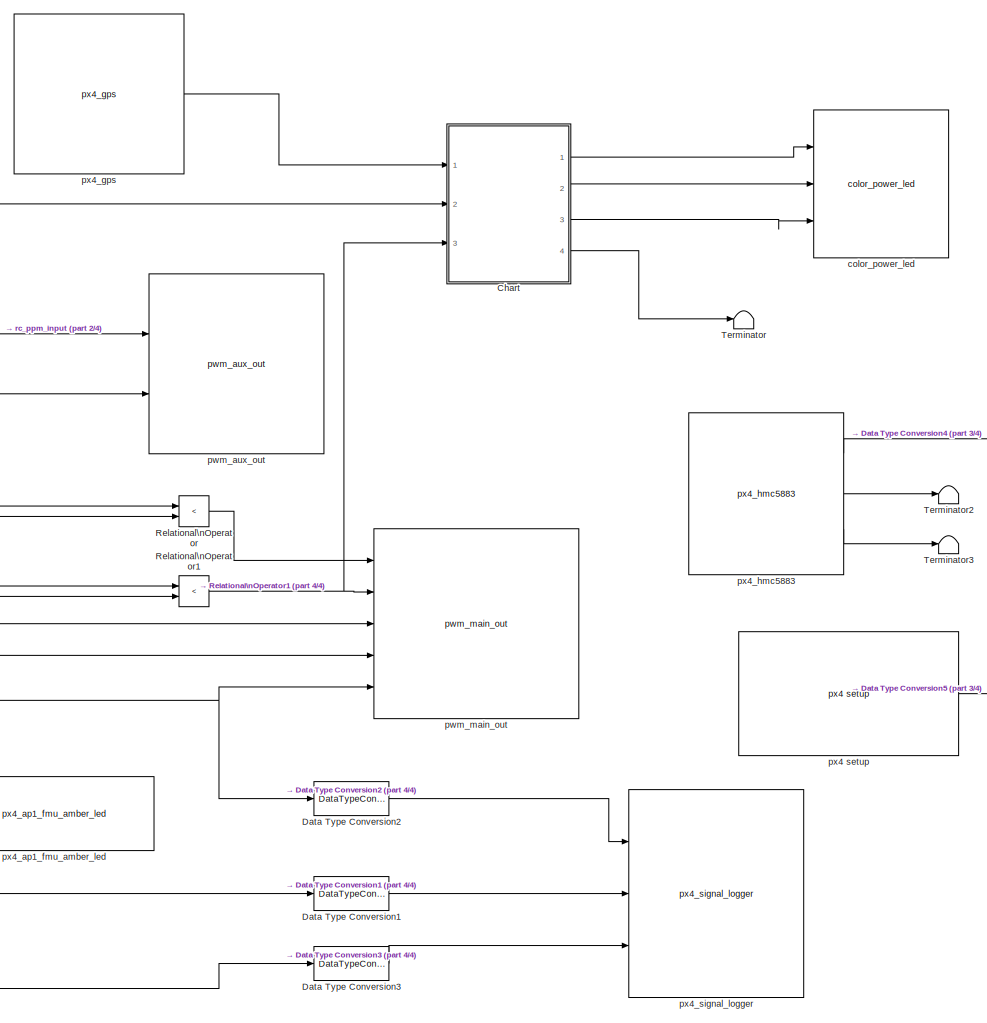
[diagram: root canvas - part 1/4, center side, full height]
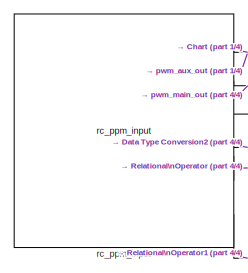
[diagram: root canvas - part 2/4, middle left region]
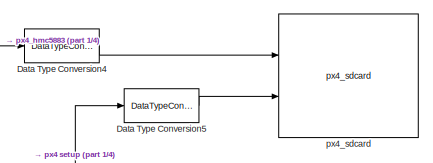
[diagram: root canvas - part 3/4, middle right region]
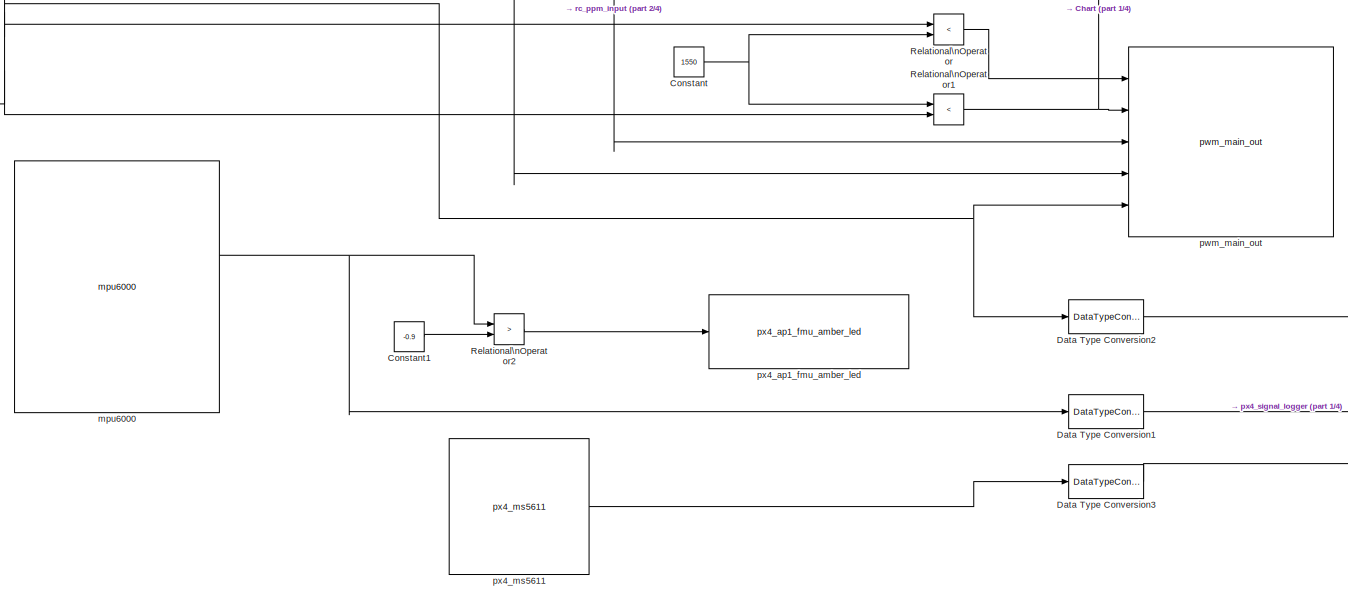
[diagram: root canvas - part 4/4, bottom center region]
MODEL test_full_set
KIND model
CONFIG InitFcn = px4_ap1_mdl_callback('check_model');
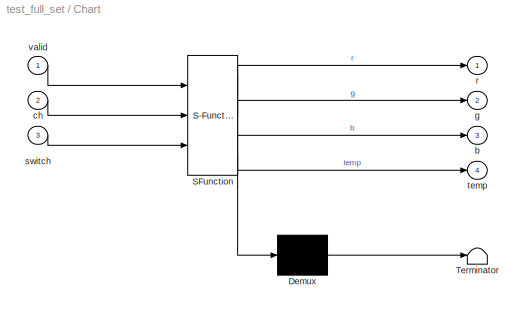
BLOCK [SubSystem] Chart
  ErrorFcn = Stateflow.Translate.translate
  PermitHierarchicalResolution = ExplicitOnly
  Ports = [3, 4]
  RequestExecContextInheritance = off
  SFBlockType = Chart
  SID = 1
  TreatAsAtomicUnit = on
  Variant = off
BLOCK [Demux] Chart/ Demux 
  Outputs = 1
  Ports = [1, 1]
  SID = 1::12
BLOCK [S-Function] Chart/ SFunction 
  EnableBusSupport = on
  FunctionName = sf_sfun
  PortCounts = [3 5]
  Ports = [3, 5]
  SFcnIsStateOwnerBlock = off
  SFunctionDeploymentMode = off
  SID = 1::11
  Tag = Stateflow S-Function test_full_set 1
BLOCK [Terminator] Chart/ Terminator 
  SID = 1::13
BLOCK [Outport] Chart/b
  IconDisplay = Port number
  Port = 3
  SID = 1::9
BLOCK [Inport] Chart/ch
  IconDisplay = Port number
  Port = 2
  SID = 1::2
BLOCK [Outport] Chart/g
  IconDisplay = Port number
  Port = 2
  SID = 1::8
BLOCK [Outport] Chart/r
  IconDisplay = Port number
  SID = 1::7
BLOCK [Inport] Chart/switch
  IconDisplay = Port number
  Port = 3
  SID = 1::3
BLOCK [Outport] Chart/temp
  IconDisplay = Port number
  Port = 4
  SID = 1::10
BLOCK [Inport] Chart/valid
  IconDisplay = Port number
  SID = 1::1
BLOCK [Constant] Constant
  SID = 2
  Value = 1550
BLOCK [Constant] Constant1
  SID = 3
  Value = -0.9
BLOCK [DataTypeConversion] Data Type Conversion1
  RndMeth = Floor
  SID = 4
  SaturateOnIntegerOverflow = off
BLOCK [DataTypeConversion] Data Type Conversion2
  RndMeth = Floor
  SID = 5
  SaturateOnIntegerOverflow = off
BLOCK [DataTypeConversion] Data Type Conversion3
  RndMeth = Floor
  SID = 6
  SaturateOnIntegerOverflow = off
BLOCK [DataTypeConversion] Data Type Conversion4
  OutDataTypeStr = double
  RndMeth = Floor
  SID = 26
  SaturateOnIntegerOverflow = off
BLOCK [DataTypeConversion] Data Type Conversion5
  OutDataTypeStr = double
  RndMeth = Floor
  SID = 27
  SaturateOnIntegerOverflow = off
BLOCK [RelationalOperator] Relational\nOperator
  InputSameDT = off
  Operator = <
  OutDataTypeStr = boolean
  Ports = [2, 1]
  SID = 7
BLOCK [RelationalOperator] Relational\nOperator1
  InputSameDT = off
  Operator = <
  OutDataTypeStr = boolean
  Ports = [2, 1]
  SID = 8
BLOCK [RelationalOperator] Relational\nOperator2
  InputSameDT = off
  Operator = >
  Ports = [2, 1]
  SID = 9
BLOCK [Terminator] Terminator
  SID = 10
BLOCK [Terminator] Terminator2
  SID = 12
BLOCK [Terminator] Terminator3
  SID = 13
BLOCK [Reference] color_power_led  REF=px4_ap1_color_power_led_lib/color_power_led  (lib defined in mdl_f26135f629dd)
  Ports = [3]
  SID = 14
  SourceBlock = px4_ap1_color_power_led_lib/color_power_led
  SourceType = PX4_COLOR_POWER_LED
BLOCK [Reference] mpu6000  REF=px4_ap1_mpu_6000_lib/mpu6000
  Description = Setup for PX4 native software
  Ports = [0, 7]
  SID = 15
  SourceBlock = px4_ap1_mpu_6000_lib/mpu6000
  SourceType = PX4_MPU6000
  accXcorr = 1
  accXoff = 0
  accYcorr = 1
  accYoff = 0
  accZcorr = 1
  accZoff = 0
  accelRange = +/- 2g
  filter = 5Hz
  gyroRange = 250°/s
BLOCK [Reference] pwm_aux_out  REF=px4_ap1_pwm_aux_out_lib/pwm_aux_out
  Description = Setup for PX4 native software
  Ports = [2]
  SID = 16
  SourceBlock = px4_ap1_pwm_aux_out_lib/pwm_aux_out
  SourceType = PX4_PWM_AUX_OUT
  aux1 = on
  aux2 = off
  aux3 = off
  aux4 = off
  aux5 = on
  aux6 = off
  pwm_1_4 = 115
  pwm_5_6 = 311
BLOCK [Reference] pwm_main_out  REF=px4_ap1_pwm_main_out_lib/pwm_main_out
  Description = Setup for PX4 native software
  Ports = [5]
  SID = 17
  SourceBlock = px4_ap1_pwm_main_out_lib/pwm_main_out
  SourceType = PX4_PWM_MAIN_OUT
  alt_pwm = 111
  def_pwm = 222
  main1 = on
  main2 = off
  main3 = on
  main4 = off
  main5 = on
  main6 = off
  main7 = off
  main8 = off
  pwm_1_2 = Default
  pwm_3_4 = Alternate
  pwm_5_8 = Default
BLOCK [Reference] px4 setup  REF=px4_ap1_px4setup_lib/px4 setup
  Ports = [0, 1]
  SID = 18
  SampleTimeValue = 0.01
  SourceBlock = px4_ap1_px4setup_lib/px4 setup
  SourceType = PX4_Target_Setup
  cbBuild = on
  cbPort = COM3
  cbUpload = off
  cpuLoad = on
  debugmode = on
BLOCK [Reference] px4_ap1_fmu_amber_led  REF=px4_ap1_fmu_amber_led_lib/px4_ap1_fmu_amber_led
  Description = TODO
  Ports = [1]
  SID = 19
  SourceBlock = px4_ap1_fmu_amber_led_lib/px4_ap1_fmu_amber_led
  SourceType = PX4_FMU_AMBER_LED
BLOCK [Reference] px4_gps  REF=px4_ap1_gps_lib/px4_gps
  Description = Setup for PX4 native software
  Ports = [0, 1]
  SID = 20
  SourceBlock = px4_ap1_gps_lib/px4_gps
  SourceType = PX4_GPS
  baud = 9600
  course = off
  date = off
  latlon = off
  speed = off
  time = off
BLOCK [Reference] px4_hmc5883  REF=px4_ap1_hmc5883_lib/px4_hmc5883
  Description = Setup for PX4 native software
  Ports = [0, 3]
  SID = 21
  SourceBlock = px4_ap1_hmc5883_lib/px4_hmc5883
  SourceType = PX4_HMC5883
  magRange = +/- 1.3Ga
BLOCK [Reference] px4_ms5611  REF=px4_ap1_ms5611_lib/px4_ms5611
  Description = Setup for PX4 native software
  Ports = [0, 1]
  SID = 22
  SourceBlock = px4_ap1_ms5611_lib/px4_ms5611
  SourceType = PX4_MS5611
BLOCK [Reference] px4_sdcard  REF=px4_ap1_sdcard_logger_lib/px4_sdcard
  Description = Setup for PX4 native software
  Ports = [2]
  SID = 25
  SourceBlock = px4_ap1_sdcard_logger_lib/px4_sdcard
  SourceType = PX4_SDCARD
  sampleTime = 0.5
  sigCnt = 2
BLOCK [Reference] px4_signal_logger  REF=px4_ap1_signal_output_lib/px4_signal_logger
  Description = Setup for PX4 native software
  Ports = [3]
  SID = 23
  SourceBlock = px4_ap1_signal_output_lib/px4_signal_logger
  SourceType = PX4_SIGNAL_OUTPUT
  sampleTime = 500
  sigCnt = 3
BLOCK [Reference] rc_ppm_input  REF=px4_ap1_rc_ppm_input_lib/rc_ppm_input
  Description = Setup for PX4 native software
  Ports = [0, 6]
  SID = 24
  SourceBlock = px4_ap1_rc_ppm_input_lib/rc_ppm_input
  SourceType = RC_PPM_Input
  ch1 = on
  ch10 = off
  ch11 = off
  ch12 = off
  ch13 = off
  ch14 = off
  ch15 = off
  ch16 = off
  ch17 = off
  ch18 = off
  ch2 = on
  ch3 = on
  ch4 = on
  ch5 = on
  ch6 = on
  ch7 = off
  ch8 = off
  ch9 = off
LINE Chart/ Demux :1 -> Chart/ Terminator :1
LINE Chart/ SFunction :1 -> Chart/ Demux :1
LINE Chart/ SFunction :2 -> Chart/r:1
LINE Chart/ SFunction :3 -> Chart/g:1
LINE Chart/ SFunction :4 -> Chart/b:1
LINE Chart/ SFunction :5 -> Chart/temp:1
LINE Chart/ch:1 -> Chart/ SFunction :2
LINE Chart/switch:1 -> Chart/ SFunction :3
LINE Chart/valid:1 -> Chart/ SFunction :1
LINE Chart:1 -> color_power_led:1
LINE Chart:2 -> color_power_led:2
LINE Chart:3 -> color_power_led:3
LINE Chart:4 -> Terminator:1
LINE Constant1:1 -> Relational\nOperator2:2
NET Constant:1 -> Relational\nOperator1:1, Relational\nOperator:2
LINE Data Type Conversion1:1 -> px4_signal_logger:2
LINE Data Type Conversion2:1 -> px4_signal_logger:1
LINE Data Type Conversion3:1 -> px4_signal_logger:3
LINE Data Type Conversion4:1 -> px4_sdcard:1
LINE Data Type Conversion5:1 -> px4_sdcard:2
NET Relational\nOperator1:1 -> Chart:3, pwm_main_out:2
LINE Relational\nOperator2:1 -> px4_ap1_fmu_amber_led:1
LINE Relational\nOperator:1 -> pwm_main_out:1
NET mpu6000:3 -> Data Type Conversion1:1, Relational\nOperator2:1
LINE px4 setup:1 -> Data Type Conversion5:1
LINE px4_gps:1 -> Chart:1
LINE px4_hmc5883:1 -> Data Type Conversion4:1
LINE px4_hmc5883:2 -> Terminator2:1
LINE px4_hmc5883:3 -> Terminator3:1
LINE px4_ms5611:1 -> Data Type Conversion3:1
NET rc_ppm_input:1 -> Chart:2, pwm_aux_out:1
NET rc_ppm_input:2 -> pwm_aux_out:2, pwm_main_out:3
LINE rc_ppm_input:3 -> pwm_main_out:4
NET rc_ppm_input:4 -> Data Type Conversion2:1, pwm_main_out:5
LINE rc_ppm_input:5 -> Relational\nOperator:1
LINE rc_ppm_input:6 -> Relational\nOperator1:2
note: NET lines group one-source signal fan-out (src -> all destinations, sorted); 1:1 wires keep LINE
CHART Chart states=0 transitions=9
